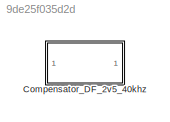
MODEL slx_9de25f035d2d
KIND model
CONFIG AbsTol = auto
CONFIG EnableMultiTasking = off
CONFIG FixedStep = auto
CONFIG MaxStep = auto
CONFIG MinStep = auto
CONFIG RelTol = 1e-3
CONFIG SampleTimeConstraint = Unconstrained
CONFIG Solver = VariableStepAuto
CONFIG SolverName = VariableStepAuto
CONFIG StartTime = 0.0
CONFIG StopTime = 10.0
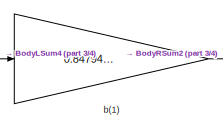
[diagram: Compensator_DF_2v5_40khz - part 1/4, top center region]
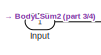
[diagram: Compensator_DF_2v5_40khz - part 2/4, top left region]
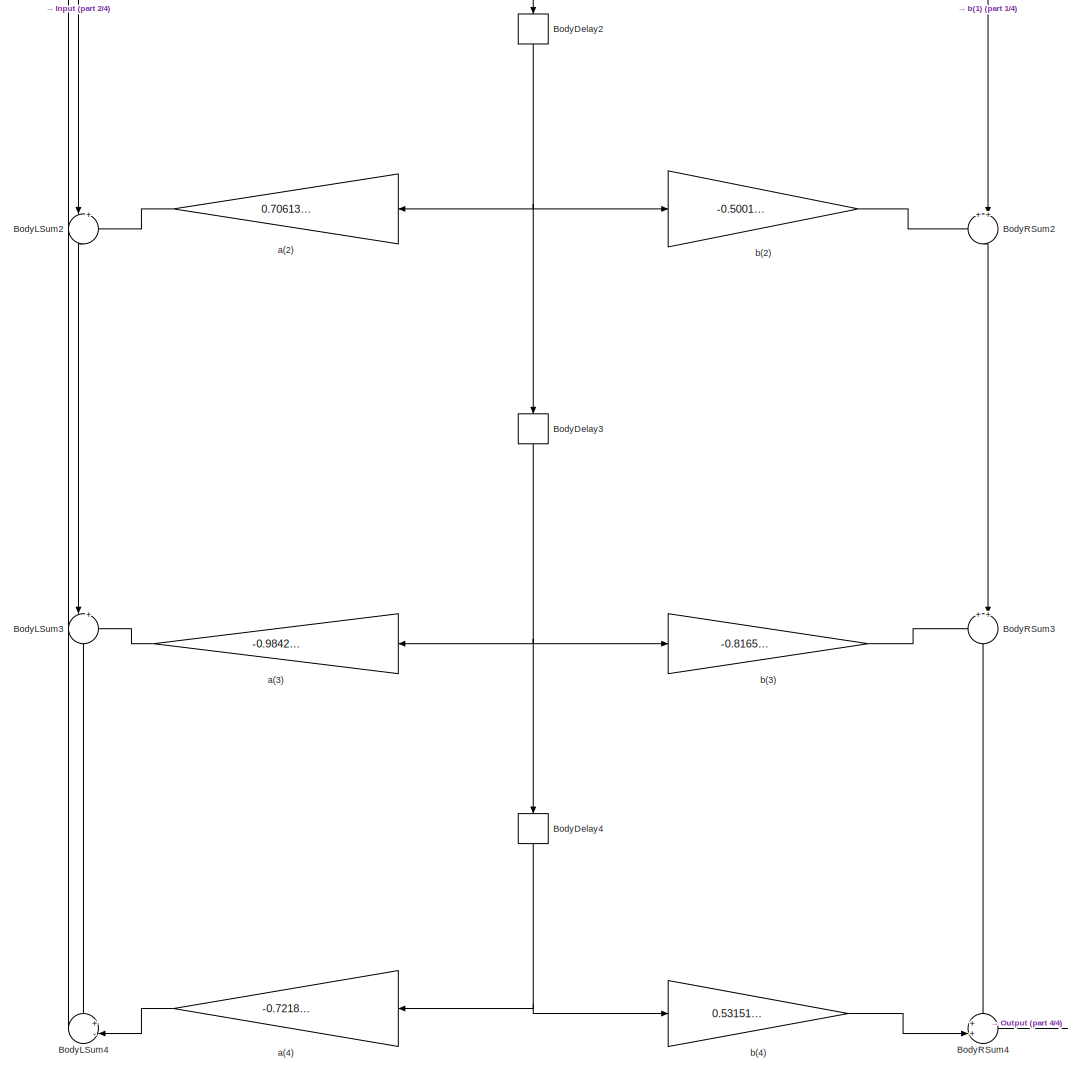
[diagram: Compensator_DF_2v5_40khz - part 3/4, center side, full height]
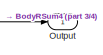
[diagram: Compensator_DF_2v5_40khz - part 4/4, bottom right region]
BLOCK [SubSystem] Compensator_DF_2v5_40khz
  ErrorFcn = dspFilterRealizedInBasicElemsAlgLoopErrFcnCallback
  Ports = [1, 1]
  RequestExecContextInheritance = off
  Tag = FilterWizardSubSystem
  UserDataPersistent = on
BLOCK [Delay] Compensator_DF_2v5_40khz/BodyDelay2
  DelayLength = 1
  InitialCondition = 0
  InputPortMap = u0
  NameLocation = right
  Ports = [1, 1]
BLOCK [Delay] Compensator_DF_2v5_40khz/BodyDelay3
  DelayLength = 1
  InitialCondition = 0
  InputPortMap = u0
  NameLocation = right
  Ports = [1, 1]
BLOCK [Delay] Compensator_DF_2v5_40khz/BodyDelay4
  DelayLength = 1
  InitialCondition = 0
  InputPortMap = u0
  NameLocation = right
  Ports = [1, 1]
BLOCK [Sum] Compensator_DF_2v5_40khz/BodyLSum2
  Inputs = |+-
  NameLocation = right
  OutDataTypeStr = Inherit: Same as first input
  Ports = [2, 1]
  RndMeth = Nearest
  SaturateOnIntegerOverflow = on
BLOCK [Sum] Compensator_DF_2v5_40khz/BodyLSum3
  Inputs = |+-
  NameLocation = right
  OutDataTypeStr = Inherit: Same as first input
  Ports = [2, 1]
  RndMeth = Nearest
  SaturateOnIntegerOverflow = on
BLOCK [Sum] Compensator_DF_2v5_40khz/BodyLSum4
  Inputs = +-|
  OutDataTypeStr = Inherit: Same as first input
  Ports = [2, 1]
  RndMeth = Nearest
  SaturateOnIntegerOverflow = on
BLOCK [Sum] Compensator_DF_2v5_40khz/BodyRSum2
  Inputs = ++|
  NameLocation = right
  OutDataTypeStr = Inherit: Same as first input
  Ports = [2, 1]
  RndMeth = Nearest
  SaturateOnIntegerOverflow = on
BLOCK [Sum] Compensator_DF_2v5_40khz/BodyRSum3
  Inputs = ++|
  NameLocation = right
  OutDataTypeStr = Inherit: Same as first input
  Ports = [2, 1]
  RndMeth = Nearest
  SaturateOnIntegerOverflow = on
BLOCK [Sum] Compensator_DF_2v5_40khz/BodyRSum4
  Inputs = ++|
  OutDataTypeStr = Inherit: Same as first input
  Ports = [2, 1]
  RndMeth = Nearest
  SaturateOnIntegerOverflow = on
BLOCK [Inport] Compensator_DF_2v5_40khz/Input
BLOCK [Outport] Compensator_DF_2v5_40khz/Output
  VectorParamsAs1DForOutWhenUnconnected = off
BLOCK [Gain] Compensator_DF_2v5_40khz/a(2)
  Gain = 0.706130000000000035
  OutDataTypeStr = Inherit: Same as input
  ParamDataTypeStr = double
  RndMeth = Nearest
  SaturateOnIntegerOverflow = on
BLOCK [Gain] Compensator_DF_2v5_40khz/a(3)
  Gain = -0.984299999999999953
  OutDataTypeStr = Inherit: Same as input
  ParamDataTypeStr = double
  RndMeth = Nearest
  SaturateOnIntegerOverflow = on
BLOCK [Gain] Compensator_DF_2v5_40khz/a(4)
  Gain = -0.721829999999999972
  OutDataTypeStr = Inherit: Same as input
  ParamDataTypeStr = double
  RndMeth = Nearest
  SaturateOnIntegerOverflow = on
BLOCK [Gain] Compensator_DF_2v5_40khz/b(1)
  Gain = 0.847949999999999982
  OutDataTypeStr = Inherit: Same as input
  ParamDataTypeStr = double
  RndMeth = Nearest
  SaturateOnIntegerOverflow = on
BLOCK [Gain] Compensator_DF_2v5_40khz/b(2)
  Gain = -0.500120000000000009
  OutDataTypeStr = Inherit: Same as input
  ParamDataTypeStr = double
  RndMeth = Nearest
  SaturateOnIntegerOverflow = on
BLOCK [Gain] Compensator_DF_2v5_40khz/b(3)
  Gain = -0.816549999999999998
  OutDataTypeStr = Inherit: Same as input
  ParamDataTypeStr = double
  RndMeth = Nearest
  SaturateOnIntegerOverflow = on
BLOCK [Gain] Compensator_DF_2v5_40khz/b(4)
  Gain = 0.531519999999999992
  OutDataTypeStr = Inherit: Same as input
  ParamDataTypeStr = double
  RndMeth = Nearest
  SaturateOnIntegerOverflow = on
NET Compensator_DF_2v5_40khz/BodyDelay2:1 -> Compensator_DF_2v5_40khz/BodyDelay3:1, Compensator_DF_2v5_40khz/a(2):1, Compensator_DF_2v5_40khz/b(2):1
NET Compensator_DF_2v5_40khz/BodyDelay3:1 -> Compensator_DF_2v5_40khz/BodyDelay4:1, Compensator_DF_2v5_40khz/a(3):1, Compensator_DF_2v5_40khz/b(3):1
NET Compensator_DF_2v5_40khz/BodyDelay4:1 -> Compensator_DF_2v5_40khz/a(4):1, Compensator_DF_2v5_40khz/b(4):1
LINE Compensator_DF_2v5_40khz/BodyLSum2:1 -> Compensator_DF_2v5_40khz/BodyLSum3:1
LINE Compensator_DF_2v5_40khz/BodyLSum3:1 -> Compensator_DF_2v5_40khz/BodyLSum4:1
NET Compensator_DF_2v5_40khz/BodyLSum4:1 -> Compensator_DF_2v5_40khz/BodyDelay2:1, Compensator_DF_2v5_40khz/b(1):1
LINE Compensator_DF_2v5_40khz/BodyRSum2:1 -> Compensator_DF_2v5_40khz/BodyRSum3:2
LINE Compensator_DF_2v5_40khz/BodyRSum3:1 -> Compensator_DF_2v5_40khz/BodyRSum4:1
LINE Compensator_DF_2v5_40khz/BodyRSum4:1 -> Compensator_DF_2v5_40khz/Output:1
LINE Compensator_DF_2v5_40khz/Input:1 -> Compensator_DF_2v5_40khz/BodyLSum2:1
LINE Compensator_DF_2v5_40khz/a(2):1 -> Compensator_DF_2v5_40khz/BodyLSum2:2
LINE Compensator_DF_2v5_40khz/a(3):1 -> Compensator_DF_2v5_40khz/BodyLSum3:2
LINE Compensator_DF_2v5_40khz/a(4):1 -> Compensator_DF_2v5_40khz/BodyLSum4:2
LINE Compensator_DF_2v5_40khz/b(1):1 -> Compensator_DF_2v5_40khz/BodyRSum2:2
LINE Compensator_DF_2v5_40khz/b(2):1 -> Compensator_DF_2v5_40khz/BodyRSum2:1
LINE Compensator_DF_2v5_40khz/b(3):1 -> Compensator_DF_2v5_40khz/BodyRSum3:1
LINE Compensator_DF_2v5_40khz/b(4):1 -> Compensator_DF_2v5_40khz/BodyRSum4:2
note: NET lines group one-source signal fan-out (src -> all destinations, sorted); 1:1 wires keep LINE
